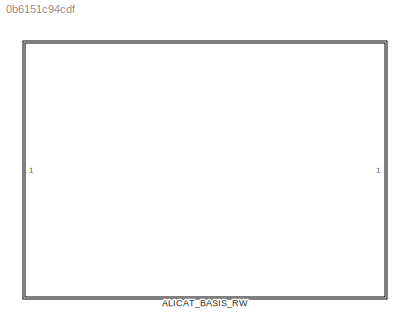
MODEL slx_0b6151c94cdf
KIND library
CONFIG AbsTol = auto
CONFIG EnableMultiTasking = off
CONFIG FixedStep = auto
CONFIG MaxStep = auto
CONFIG MinStep = auto
CONFIG RelTol = 1e-3
CONFIG SampleTimeConstraint = Unconstrained
CONFIG SolverName = VariableStepAuto
CONFIG StartTime = 0.0
CONFIG StopTime = 10.0
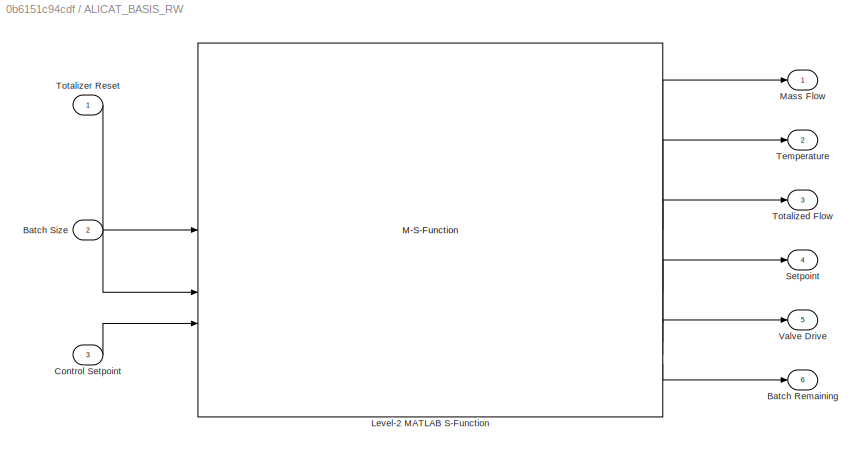
BLOCK [SubSystem] ALICAT_BASIS_RW
BLOCK [Outport] ALICAT_BASIS_RW/Batch Remaining
  Port = 6
BLOCK [Inport] ALICAT_BASIS_RW/Batch Size
  Port = 2
BLOCK [Inport] ALICAT_BASIS_RW/Control Setpoint
  Port = 3
BLOCK [M-S-Function] ALICAT_BASIS_RW/Level-2 MATLAB S-Function
  FunctionName = ALICAT_BASIS_RW
  Parameters = Port, Device_Name, gs_type, batch_sw, contrl_typ, dv_typ
BLOCK [Outport] ALICAT_BASIS_RW/Mass Flow
BLOCK [Outport] ALICAT_BASIS_RW/Setpoint
  Port = 4
BLOCK [Outport] ALICAT_BASIS_RW/Temperature
  Port = 2
BLOCK [Outport] ALICAT_BASIS_RW/Totalized Flow
  Port = 3
BLOCK [Inport] ALICAT_BASIS_RW/Totalizer Reset
BLOCK [Outport] ALICAT_BASIS_RW/Valve Drive
  Port = 5
LINE ALICAT_BASIS_RW/Batch Size:1 -> ALICAT_BASIS_RW/Level-2 MATLAB S-Function:2
LINE ALICAT_BASIS_RW/Control Setpoint:1 -> ALICAT_BASIS_RW/Level-2 MATLAB S-Function:3
LINE ALICAT_BASIS_RW/Level-2 MATLAB S-Function:1 -> ALICAT_BASIS_RW/Mass Flow:1
LINE ALICAT_BASIS_RW/Level-2 MATLAB S-Function:2 -> ALICAT_BASIS_RW/Temperature:1
LINE ALICAT_BASIS_RW/Level-2 MATLAB S-Function:3 -> ALICAT_BASIS_RW/Totalized Flow:1
LINE ALICAT_BASIS_RW/Level-2 MATLAB S-Function:4 -> ALICAT_BASIS_RW/Setpoint:1
LINE ALICAT_BASIS_RW/Level-2 MATLAB S-Function:5 -> ALICAT_BASIS_RW/Valve Drive:1
LINE ALICAT_BASIS_RW/Level-2 MATLAB S-Function:6 -> ALICAT_BASIS_RW/Batch Remaining:1
LINE ALICAT_BASIS_RW/Totalizer Reset:1 -> ALICAT_BASIS_RW/Level-2 MATLAB S-Function:1
